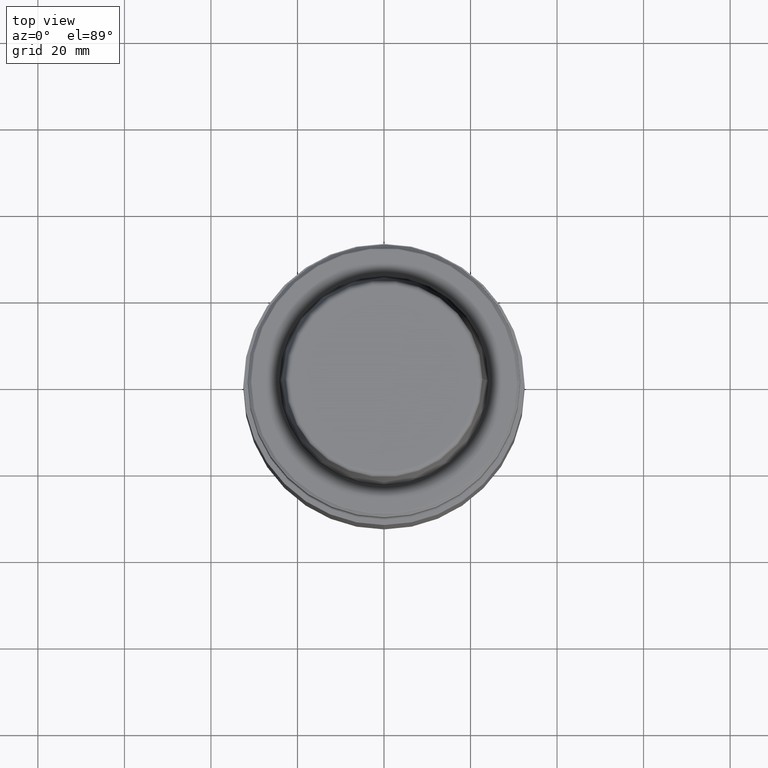
[diagram: clean part render]
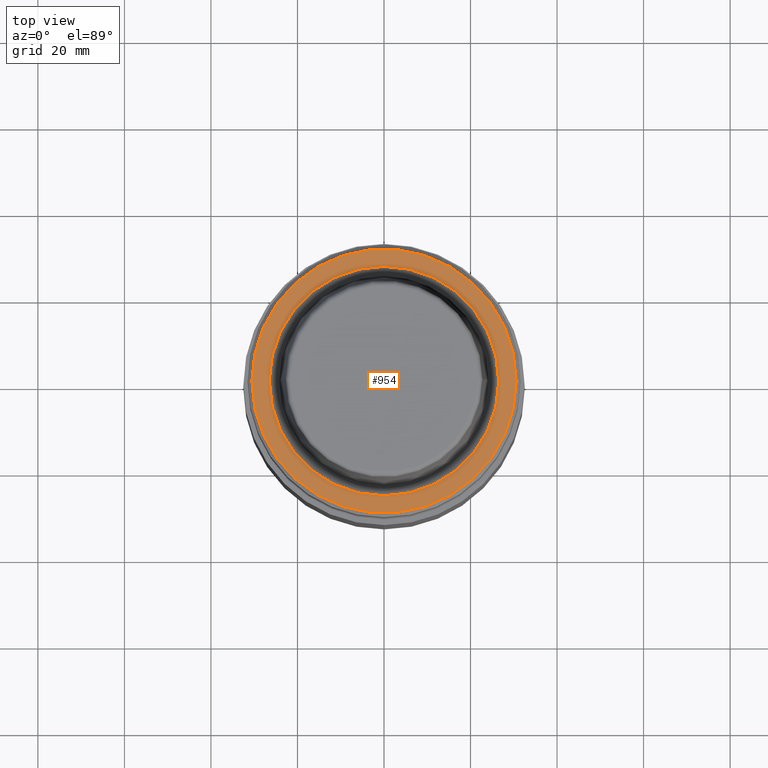
[diagram: same view with one face highlighted and labeled with its STEP entity id]
A machine part, top view. The second image highlights one B-rep face of the part: STEP entity #954.
In plain terms, the highlighted planar face has unit normal (0, 0, -1).
Its self-contained STEP definition (entity closure, byte-faithful):
#13 = EDGE_CURVE ( 'NONE', #300, #853, #152, .T. ) ;
#79 = DIRECTION ( 'NONE',  ( -0.0000000000000000000, -0.0000000000000000000, 1.000000000000000000 ) ) ;
#134 = CIRCLE ( 'NONE', #1163, 30.53431457505076100 ) ;
#152 = CIRCLE ( 'NONE', #689, 26.52499999999999900 ) ;
#162 = CIRCLE ( 'NONE', #321, 30.53431457505076100 ) ;
#186 = VERTEX_POINT ( 'NONE', #338 ) ;
#276 = ORIENTED_EDGE ( 'NONE', *, *, #832, .T. ) ;
#300 = VERTEX_POINT ( 'NONE', #1274 ) ;
#308 = PLANE ( 'NONE',  #967 ) ;
#321 = AXIS2_PLACEMENT_3D ( 'NONE', #575, #667, #481 ) ;
#338 = CARTESIAN_POINT ( 'NONE',  ( 30.53431457505076100, 0.0000000000000000000, 0.0000000000000000000 ) ) ;
#359 = EDGE_CURVE ( 'NONE', #186, #376, #134, .T. ) ;
#376 = VERTEX_POINT ( 'NONE', #886 ) ;
#411 = CARTESIAN_POINT ( 'NONE',  ( 0.0000000000000000000, 0.0000000000000000000, 0.0000000000000000000 ) ) ;
#434 = DIRECTION ( 'NONE',  ( -0.0000000000000000000, -0.0000000000000000000, 1.000000000000000000 ) ) ;
#447 = FACE_BOUND ( 'NONE', #883, .T. ) ;
#481 = DIRECTION ( 'NONE',  ( 1.000000000000000000, 0.0000000000000000000, 0.0000000000000000000 ) ) ;
#569 = ORIENTED_EDGE ( 'NONE', *, *, #13, .F. ) ;
#575 = CARTESIAN_POINT ( 'NONE',  ( 0.0000000000000000000, 0.0000000000000000000, 0.0000000000000000000 ) ) ;
#597 = DIRECTION ( 'NONE',  ( -1.000000000000000000, 0.0000000000000000000, -0.0000000000000000000 ) ) ;
#667 = DIRECTION ( 'NONE',  ( -0.0000000000000000000, -0.0000000000000000000, 1.000000000000000000 ) ) ;
#689 = AXIS2_PLACEMENT_3D ( 'NONE', #1004, #434, #1239 ) ;
#768 = EDGE_LOOP ( 'NONE', ( #1039, #276 ) ) ;
#788 = EDGE_CURVE ( 'NONE', #853, #300, #1037, .T. ) ;
#789 = CARTESIAN_POINT ( 'NONE',  ( 0.0000000000000000000, 26.52499999999999900, -1.978668964786045600E-015 ) ) ;
#822 = AXIS2_PLACEMENT_3D ( 'NONE', #966, #79, #866 ) ;
#832 = EDGE_CURVE ( 'NONE', #376, #186, #162, .T. ) ;
#853 = VERTEX_POINT ( 'NONE', #1167 ) ;
#866 = DIRECTION ( 'NONE',  ( 1.000000000000000000, 0.0000000000000000000, 0.0000000000000000000 ) ) ;
#883 = EDGE_LOOP ( 'NONE', ( #989, #569 ) ) ;
#886 = CARTESIAN_POINT ( 'NONE',  ( -30.53431457505076100, 3.756694181974138600E-015, 0.0000000000000000000 ) ) ;
#954 = ADVANCED_FACE ( 'NONE', ( #447, #1262 ), #308, .F. ) ;
#966 = CARTESIAN_POINT ( 'NONE',  ( 0.0000000000000000000, 0.0000000000000000000, 0.0000000000000000000 ) ) ;
#967 = AXIS2_PLACEMENT_3D ( 'NONE', #789, #1194, #597 ) ;
#989 = ORIENTED_EDGE ( 'NONE', *, *, #788, .F. ) ;
#1004 = CARTESIAN_POINT ( 'NONE',  ( 0.0000000000000000000, 0.0000000000000000000, 0.0000000000000000000 ) ) ;
#1028 = DIRECTION ( 'NONE',  ( -0.0000000000000000000, -0.0000000000000000000, 1.000000000000000000 ) ) ;
#1037 = CIRCLE ( 'NONE', #822, 26.52499999999999900 ) ;
#1039 = ORIENTED_EDGE ( 'NONE', *, *, #359, .T. ) ;
#1072 = DIRECTION ( 'NONE',  ( 1.000000000000000000, 0.0000000000000000000, 0.0000000000000000000 ) ) ;
#1163 = AXIS2_PLACEMENT_3D ( 'NONE', #411, #1028, #1072 ) ;
#1167 = CARTESIAN_POINT ( 'NONE',  ( 26.52499999999999900, 0.0000000000000000000, 0.0000000000000000000 ) ) ;
#1194 = DIRECTION ( 'NONE',  ( 0.0000000000000000000, 0.0000000000000000000, -1.000000000000000000 ) ) ;
#1239 = DIRECTION ( 'NONE',  ( 1.000000000000000000, 0.0000000000000000000, 0.0000000000000000000 ) ) ;
#1262 = FACE_OUTER_BOUND ( 'NONE', #768, .T. ) ;
#1274 = CARTESIAN_POINT ( 'NONE',  ( -26.52499999999999900, 3.248375634738354300E-015, 0.0000000000000000000 ) ) ;